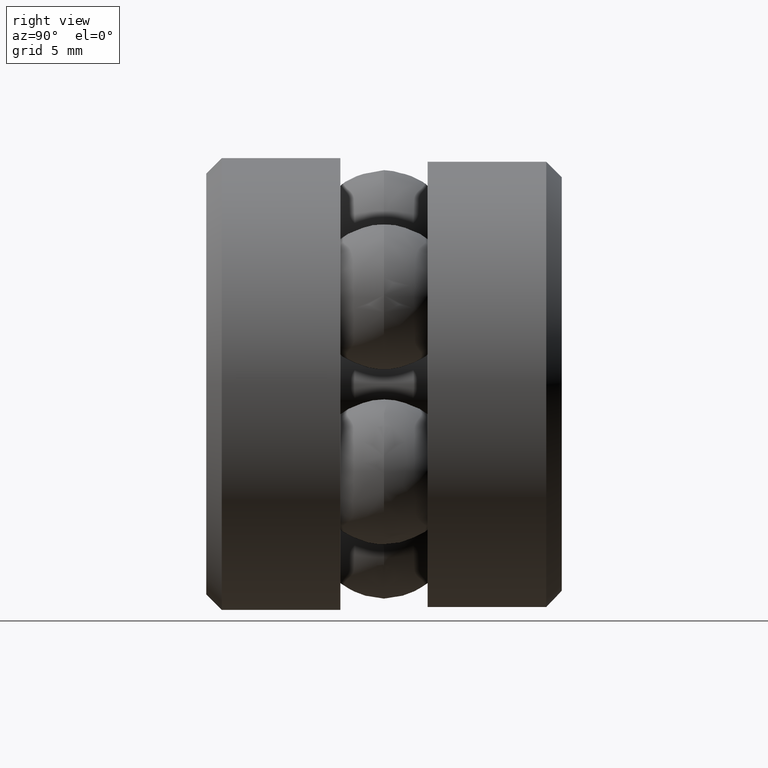
[diagram: clean part render]
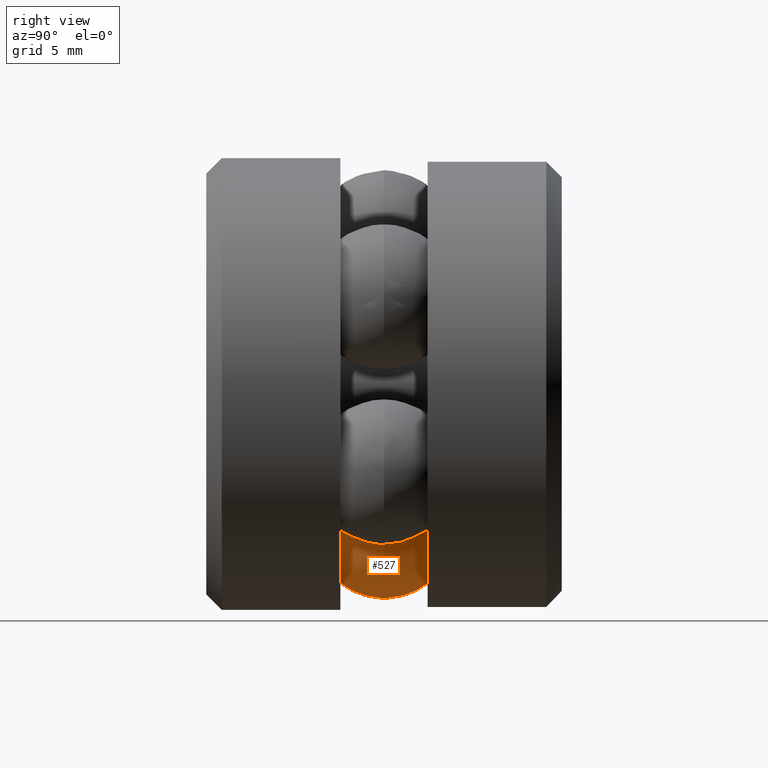
[diagram: same view with one face highlighted and labeled with its STEP entity id]
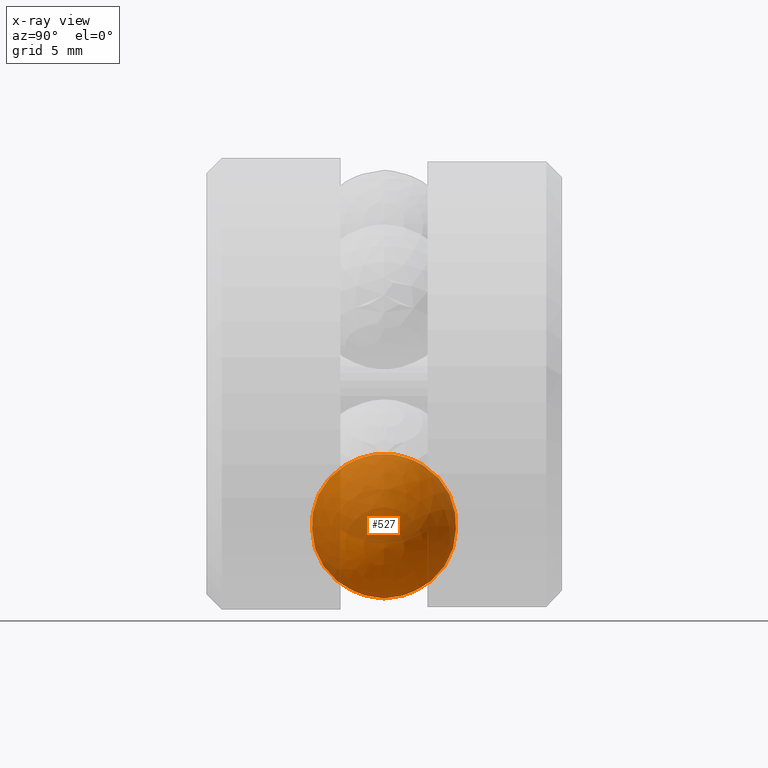
[diagram: x-ray of the same camera — body ghosted, the highlighted face saturated]
A machine part, right view. The second image highlights one B-rep face of the part: STEP entity #527.
The next image is the same camera in x-ray: the body ghosted, the highlighted face saturated — about 71% of this face is hidden behind the body in this view.
In plain terms, the highlighted spherical surface has radius 3.5687 mm.
Its self-contained STEP definition (entity closure, byte-faithful):
#36 = DIRECTION ( 'NONE',  ( -0.3090169943749582800, 0.0000000000000000000, -0.9510565162951500900 ) ) ;
#88 = DIRECTION ( 'NONE',  ( -0.9510565162951500900, 0.0000000000000000000, 0.3090169943749582800 ) ) ;
#117 = CARTESIAN_POINT ( 'NONE',  ( -0.08899689437998795100, 0.3437500000000000000, -0.2739042766930031000 ) ) ;
#310 = AXIS2_PLACEMENT_3D ( 'NONE', #117, #88, #36 ) ;
#484 = SPHERICAL_SURFACE ( 'NONE', #310, 0.1405000000000000400 ) ;
#527 = ADVANCED_FACE ( 'NONE', ( ), #484, .T. ) ;